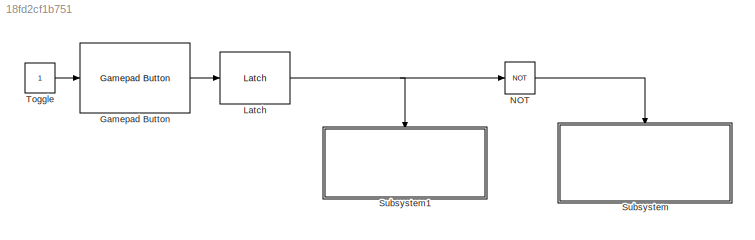
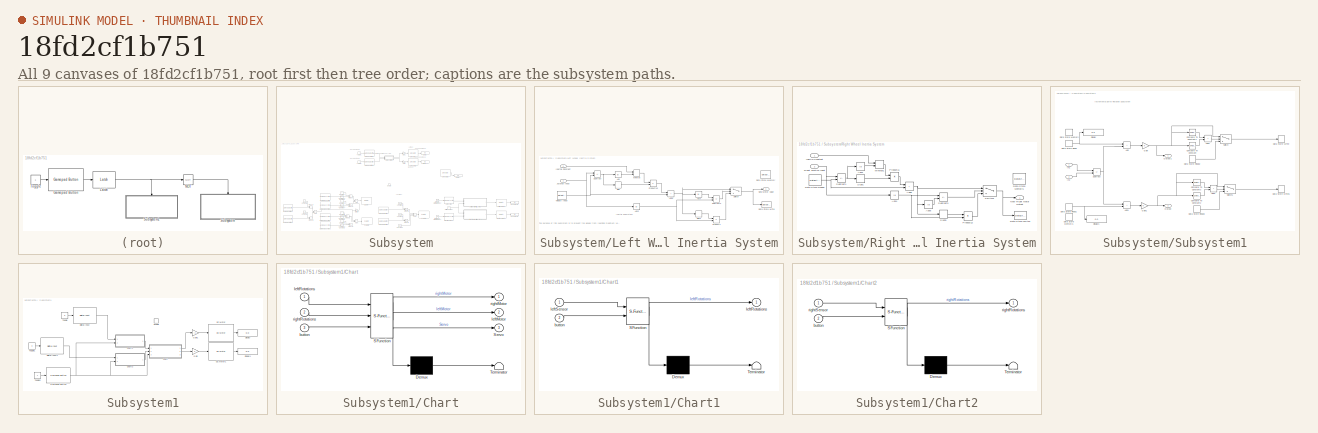
[diagram: thumbnail index - all 9 canvases of the model, root first then tree order]
MODEL slx_18fd2cf1b751
KIND model
CONFIG AbsTol = auto
CONFIG EnableMultiTasking = off
CONFIG FixedStep = auto
CONFIG MaxStep = auto
CONFIG MinStep = auto
CONFIG RelTol = 1e-3
CONFIG SampleTimeConstraint = Unconstrained
CONFIG SolverName = VariableStepAuto
CONFIG StartTime = 0.0
CONFIG StopTime = 10.0
BLOCK [Reference] Gamepad Button  REF=vexarmcortexlib/Gamepad/Gamepad Button
  Ports = [1, 1]
  SourceBlock = vexarmcortexlib/Gamepad/Gamepad Button
  SourceProductBaseCode = EC_VEX_MICRO
  SourceType = Gamepad Button
BLOCK [Reference] Latch  REF=vexcommonlib/Latch
  Ports = [1, 1]
  SourceBlock = vexcommonlib/Latch
  SourceProductBaseCode = EC_VEX_MICRO,VEXV5
  SourceType = Latch
BLOCK [Logic] NOT
  AllPortsSameDT = off
  IconShape = distinctive
  Operator = NOT
  OutDataTypeStr = boolean
  Ports = [1, 1]
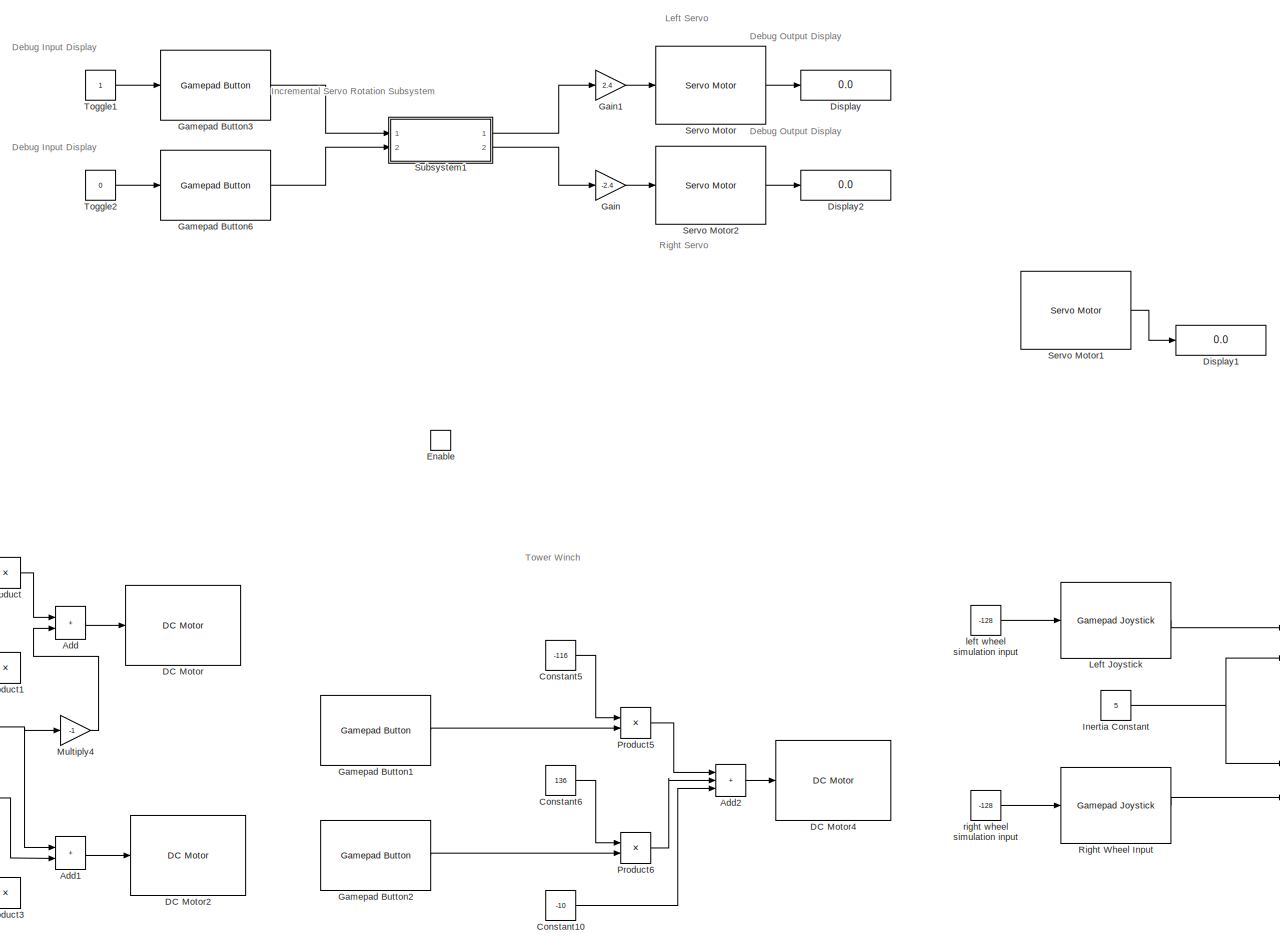
[diagram: Subsystem - part 1/3, center side, full height]
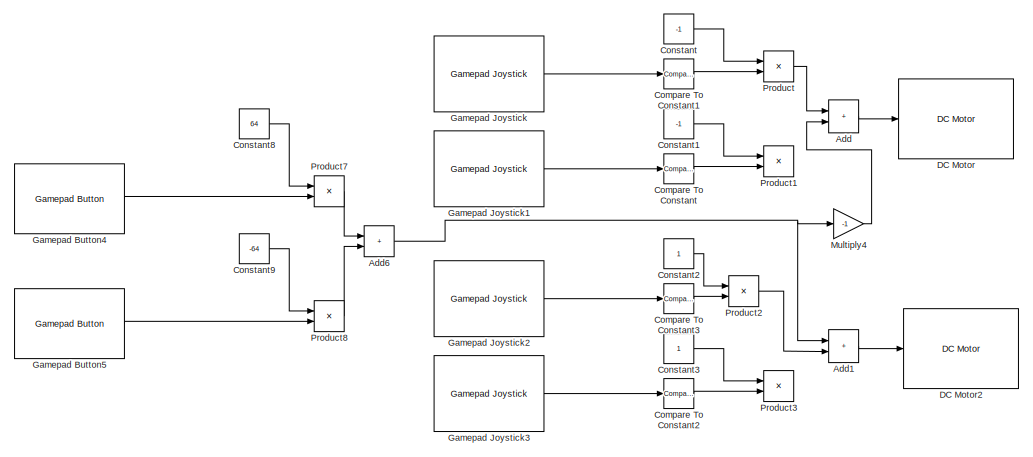
[diagram: Subsystem - part 2/3, bottom left region]
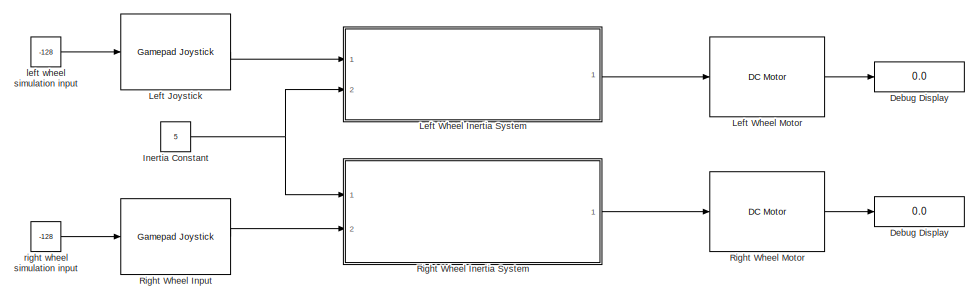
[diagram: Subsystem - part 3/3, bottom right region]
BLOCK [SubSystem] Subsystem
  Ports = [0, 0, 1]
  RequestExecContextInheritance = off
BLOCK [Display] Subsystem/ Debug Display
  Commented = on
  Decimation = 1
  Ports = [1]
BLOCK [Sum] Subsystem/Add
  IconShape = rectangular
  Ports = [2, 1]
BLOCK [Sum] Subsystem/Add1
  IconShape = rectangular
  Ports = [2, 1]
BLOCK [Sum] Subsystem/Add2
  IconShape = rectangular
  Inputs = +++
  Ports = [3, 1]
BLOCK [Sum] Subsystem/Add6
  IconShape = rectangular
  Ports = [2, 1]
BLOCK [Reference] Subsystem/Compare To Constant  REF=simulink/Logic and Bit
Operations/Compare
To Constant
  Commented = on
  Ports = [1, 1]
  SourceBlock = simulink/Logic and Bit\nOperations/Compare\nTo Constant
  SourceProductBaseCode = SL
  SourceType = Compare To Constant
BLOCK [Reference] Subsystem/Compare To Constant1  REF=simulink/Logic and Bit
Operations/Compare
To Constant
  Commented = through
  Ports = [1, 1]
  SourceBlock = simulink/Logic and Bit\nOperations/Compare\nTo Constant
  SourceProductBaseCode = SL
  SourceType = Compare To Constant
BLOCK [Reference] Subsystem/Compare To Constant2  REF=simulink/Logic and Bit
Operations/Compare
To Constant
  Commented = on
  Ports = [1, 1]
  SourceBlock = simulink/Logic and Bit\nOperations/Compare\nTo Constant
  SourceProductBaseCode = SL
  SourceType = Compare To Constant
BLOCK [Reference] Subsystem/Compare To Constant3  REF=simulink/Logic and Bit
Operations/Compare
To Constant
  Commented = through
  Ports = [1, 1]
  SourceBlock = simulink/Logic and Bit\nOperations/Compare\nTo Constant
  SourceProductBaseCode = SL
  SourceType = Compare To Constant
BLOCK [Constant] Subsystem/Constant
  Value = -1
BLOCK [Constant] Subsystem/Constant1
  Commented = on
  Value = -1
BLOCK [Constant] Subsystem/Constant10
  Value = -10
BLOCK [Constant] Subsystem/Constant2
BLOCK [Constant] Subsystem/Constant3
  Commented = on
BLOCK [Constant] Subsystem/Constant5
  Value = -116
BLOCK [Constant] Subsystem/Constant6
  Value = 136
BLOCK [Constant] Subsystem/Constant8
  Value = 64
BLOCK [Constant] Subsystem/Constant9
  Value = -64
BLOCK [Reference] Subsystem/DC Motor  REF=vexarmcortexlib/Actuators/DC Motor
  Ports = [1]
  SourceBlock = vexarmcortexlib/Actuators/DC Motor
  SourceProductBaseCode = EC_VEX_MICRO
  SourceType = DC Motor
BLOCK [Reference] Subsystem/DC Motor2  REF=vexarmcortexlib/Actuators/DC Motor
  Ports = [1]
  SourceBlock = vexarmcortexlib/Actuators/DC Motor
  SourceProductBaseCode = EC_VEX_MICRO
  SourceType = DC Motor
BLOCK [Reference] Subsystem/DC Motor4  REF=vexarmcortexlib/Actuators/DC Motor
  Ports = [1]
  SourceBlock = vexarmcortexlib/Actuators/DC Motor
  SourceProductBaseCode = EC_VEX_MICRO
  SourceType = DC Motor
BLOCK [Display] Subsystem/Debug Display
  Commented = on
  Decimation = 1
  Ports = [1]
BLOCK [Display] Subsystem/Display
  Decimation = 1
  Ports = [1]
BLOCK [Display] Subsystem/Display1
  Commented = on
  Decimation = 1
  Ports = [1]
BLOCK [Display] Subsystem/Display2
  Decimation = 1
  Ports = [1]
BLOCK [EnablePort] Subsystem/Enable
  Ports = []
BLOCK [Gain] Subsystem/Gain
  Gain = -2.4
BLOCK [Gain] Subsystem/Gain1
  Gain = 2.4
BLOCK [Reference] Subsystem/Gamepad Button1  REF=vexarmcortexlib/Gamepad/Gamepad Button
  Ports = [0, 1]
  SourceBlock = vexarmcortexlib/Gamepad/Gamepad Button
  SourceProductBaseCode = EC_VEX_MICRO
  SourceType = Gamepad Button
BLOCK [Reference] Subsystem/Gamepad Button2  REF=vexarmcortexlib/Gamepad/Gamepad Button
  Ports = [0, 1]
  SourceBlock = vexarmcortexlib/Gamepad/Gamepad Button
  SourceProductBaseCode = EC_VEX_MICRO
  SourceType = Gamepad Button
BLOCK [Reference] Subsystem/Gamepad Button3  REF=vexarmcortexlib/Gamepad/Gamepad Button
  Ports = [1, 1]
  SourceBlock = vexarmcortexlib/Gamepad/Gamepad Button
  SourceProductBaseCode = EC_VEX_MICRO
  SourceType = Gamepad Button
BLOCK [Reference] Subsystem/Gamepad Button4  REF=vexarmcortexlib/Gamepad/Gamepad Button
  Ports = [0, 1]
  SourceBlock = vexarmcortexlib/Gamepad/Gamepad Button
  SourceProductBaseCode = EC_VEX_MICRO
  SourceType = Gamepad Button
BLOCK [Reference] Subsystem/Gamepad Button5  REF=vexarmcortexlib/Gamepad/Gamepad Button
  Ports = [0, 1]
  SourceBlock = vexarmcortexlib/Gamepad/Gamepad Button
  SourceProductBaseCode = EC_VEX_MICRO
  SourceType = Gamepad Button
BLOCK [Reference] Subsystem/Gamepad Button6  REF=vexarmcortexlib/Gamepad/Gamepad Button
  Ports = [1, 1]
  SourceBlock = vexarmcortexlib/Gamepad/Gamepad Button
  SourceProductBaseCode = EC_VEX_MICRO
  SourceType = Gamepad Button
BLOCK [Reference] Subsystem/Gamepad Joystick  REF=vexarmcortexlib/Gamepad/Gamepad Joystick
  Ports = [0, 1]
  SourceBlock = vexarmcortexlib/Gamepad/Gamepad Joystick
  SourceProductBaseCode = EC_VEX_MICRO
  SourceType = Gamepad Joystick
BLOCK [Reference] Subsystem/Gamepad Joystick1  REF=vexarmcortexlib/Gamepad/Gamepad Joystick
  Commented = on
  Ports = [0, 1]
  SourceBlock = vexarmcortexlib/Gamepad/Gamepad Joystick
  SourceProductBaseCode = EC_VEX_MICRO
  SourceType = Gamepad Joystick
BLOCK [Reference] Subsystem/Gamepad Joystick2  REF=vexarmcortexlib/Gamepad/Gamepad Joystick
  Ports = [0, 1]
  SourceBlock = vexarmcortexlib/Gamepad/Gamepad Joystick
  SourceProductBaseCode = EC_VEX_MICRO
  SourceType = Gamepad Joystick
BLOCK [Reference] Subsystem/Gamepad Joystick3  REF=vexarmcortexlib/Gamepad/Gamepad Joystick
  Commented = on
  Ports = [0, 1]
  SourceBlock = vexarmcortexlib/Gamepad/Gamepad Joystick
  SourceProductBaseCode = EC_VEX_MICRO
  SourceType = Gamepad Joystick
BLOCK [Constant] Subsystem/Inertia Constant
  Commented = on
  Value = 5
BLOCK [Reference] Subsystem/Left Joystick  REF=vexarmcortexlib/Gamepad/Gamepad Joystick
  Commented = on
  Ports = [1, 1]
  SourceBlock = vexarmcortexlib/Gamepad/Gamepad Joystick
  SourceProductBaseCode = EC_VEX_MICRO
  SourceType = Gamepad Joystick
BLOCK [SubSystem] Subsystem/Left Wheel Inertia System
  Commented = on
  Ports = [2, 1]
  RequestExecContextInheritance = off
BLOCK [Abs] Subsystem/Left Wheel Inertia System/Abs
  SaturateOnIntegerOverflow = off
BLOCK [Abs] Subsystem/Left Wheel Inertia System/Abs2
  SaturateOnIntegerOverflow = off
BLOCK [Abs] Subsystem/Left Wheel Inertia System/Abs3
  SaturateOnIntegerOverflow = off
BLOCK [Sum] Subsystem/Left Wheel Inertia System/Add5
  IconShape = rectangular
  Ports = [2, 1]
BLOCK [DataStoreMemory] Subsystem/Left Wheel Inertia System/Data Store Memory
  DataStoreName = velocity1
  ReadBeforeWriteMsg = warning
  ShowAdditionalParam = off
  WriteAfterReadMsg = warning
  WriteAfterWriteMsg = warning
BLOCK [DataStoreWrite] Subsystem/Left Wheel Inertia System/Data Store Write
  DataStoreName = velocity1
  IndexOptions = Index vector (dialog)
  Indices = 1
  OutputSizes = 1
  Ports = [1]
  SampleTime = 0.02
BLOCK [Inport] Subsystem/Left Wheel Inertia System/Inertia Constant
  Port = 2
BLOCK [Inport] Subsystem/Left Wheel Inertia System/Joystick Input
BLOCK [MinMax] Subsystem/Left Wheel Inertia System/MinMax
  Inputs = 2
  Ports = [2, 1]
BLOCK [Outport] Subsystem/Left Wheel Inertia System/New Motor Value
BLOCK [Product] Subsystem/Left Wheel Inertia System/Product1
  Ports = [2, 1]
  RndMeth = Zero
BLOCK [Product] Subsystem/Left Wheel Inertia System/Product10
  Ports = [2, 1]
  RndMeth = Zero
BLOCK [Signum] Subsystem/Left Wheel Inertia System/Sign
BLOCK [Signum] Subsystem/Left Wheel Inertia System/Sign2
BLOCK [Sum] Subsystem/Left Wheel Inertia System/Subtract
  IconShape = rectangular
  Inputs = +-
  Ports = [2, 1]
BLOCK [Sum] Subsystem/Left Wheel Inertia System/Subtract2
  IconShape = rectangular
  Inputs = -+
  Ports = [2, 1]
BLOCK [Switch] Subsystem/Left Wheel Inertia System/Switch
  Criteria = u2 > Threshold
  InputSameDT = off
  SaturateOnIntegerOverflow = off
BLOCK [DataStoreRead] Subsystem/Left Wheel Inertia System/Velocity Input
  DataStoreName = velocity1
  IndexOptions = Index vector (dialog)
  Indices = 1
  OutputSizes = 1
  Ports = [0, 1]
  SampleTime = 0.02
BLOCK [Reference] Subsystem/Left Wheel Motor  REF=vexarmcortexlib/Actuators/DC Motor
  Commented = on
  Ports = [1, 1]
  SourceBlock = vexarmcortexlib/Actuators/DC Motor
  SourceProductBaseCode = EC_VEX_MICRO
  SourceType = DC Motor
BLOCK [Gain] Subsystem/Multiply4
  Gain = -1
BLOCK [Product] Subsystem/Product
  NameLocation = right
  Ports = [2, 1]
BLOCK [Product] Subsystem/Product1
  Commented = on
  NameLocation = right
  Ports = [2, 1]
BLOCK [Product] Subsystem/Product2
  NameLocation = right
  Ports = [2, 1]
BLOCK [Product] Subsystem/Product3
  Commented = on
  NameLocation = right
  Ports = [2, 1]
BLOCK [Product] Subsystem/Product5
  Ports = [2, 1]
BLOCK [Product] Subsystem/Product6
  Ports = [2, 1]
BLOCK [Product] Subsystem/Product7
  Ports = [2, 1]
BLOCK [Product] Subsystem/Product8
  Ports = [2, 1]
BLOCK [SubSystem] Subsystem/Right Wheel Inertia System
  Commented = on
  Ports = [2, 1]
  RequestExecContextInheritance = off
BLOCK [Abs] Subsystem/Right Wheel Inertia System/Abs1
  SaturateOnIntegerOverflow = off
BLOCK [Abs] Subsystem/Right Wheel Inertia System/Abs4
  SaturateOnIntegerOverflow = off
BLOCK [Abs] Subsystem/Right Wheel Inertia System/Abs5
  SaturateOnIntegerOverflow = off
BLOCK [Sum] Subsystem/Right Wheel Inertia System/Add6
  IconShape = rectangular
  Ports = [2, 1]
BLOCK [DataStoreMemory] Subsystem/Right Wheel Inertia System/Data Store Memory1
  DataStoreName = velocity2
  ReadBeforeWriteMsg = warning
  ShowAdditionalParam = off
  WriteAfterReadMsg = warning
  WriteAfterWriteMsg = warning
BLOCK [DataStoreRead] Subsystem/Right Wheel Inertia System/Data Store Read3
  DataStoreName = velocity2
  IndexOptions = Index vector (dialog)
  Indices = 1
  OutputSizes = 1
  Ports = [0, 1]
  SampleTime = 0.02
BLOCK [DataStoreWrite] Subsystem/Right Wheel Inertia System/Data Store Write1
  DataStoreName = velocity2
  IndexOptions = Index vector (dialog)
  Indices = 1
  OutputSizes = 1
  Ports = [1]
  SampleTime = 0.02
BLOCK [Inport] Subsystem/Right Wheel Inertia System/Inertia Constant
BLOCK [MinMax] Subsystem/Right Wheel Inertia System/MinMax1
  Inputs = 2
  Ports = [2, 1]
BLOCK [Outport] Subsystem/Right Wheel Inertia System/New Right Motor Output
BLOCK [Product] Subsystem/Right Wheel Inertia System/Product11
  Ports = [2, 1]
  RndMeth = Zero
BLOCK [Product] Subsystem/Right Wheel Inertia System/Product12
  Ports = [2, 1]
  RndMeth = Zero
BLOCK [Inport] Subsystem/Right Wheel Inertia System/Right Joystick Input
  Port = 2
BLOCK [Signum] Subsystem/Right Wheel Inertia System/Sign1
BLOCK [Signum] Subsystem/Right Wheel Inertia System/Sign3
BLOCK [Sum] Subsystem/Right Wheel Inertia System/Subtract1
  IconShape = rectangular
  Inputs = +-
  Ports = [2, 1]
BLOCK [Sum] Subsystem/Right Wheel Inertia System/Subtract3
  IconShape = rectangular
  Inputs = +-
  Ports = [2, 1]
BLOCK [Switch] Subsystem/Right Wheel Inertia System/Switch1
  Criteria = u2 > Threshold
  InputSameDT = off
  SaturateOnIntegerOverflow = off
BLOCK [Reference] Subsystem/Right Wheel Input  REF=vexarmcortexlib/Gamepad/Gamepad Joystick
  Commented = on
  Ports = [1, 1]
  SourceBlock = vexarmcortexlib/Gamepad/Gamepad Joystick
  SourceProductBaseCode = EC_VEX_MICRO
  SourceType = Gamepad Joystick
BLOCK [Reference] Subsystem/Right Wheel Motor  REF=vexarmcortexlib/Actuators/DC Motor
  Commented = on
  Ports = [1, 1]
  SourceBlock = vexarmcortexlib/Actuators/DC Motor
  SourceProductBaseCode = EC_VEX_MICRO
  SourceType = DC Motor
BLOCK [Reference] Subsystem/Servo Motor  REF=vexarmcortexlib/Actuators/Servo Motor
  Ports = [1, 1]
  SourceBlock = vexarmcortexlib/Actuators/Servo Motor
  SourceProductBaseCode = EC_VEX_MICRO
  SourceType = Servo Motor
BLOCK [Reference] Subsystem/Servo Motor1  REF=vexarmcortexlib/Actuators/Servo Motor
  Commented = on
  Ports = [1, 1]
  SourceBlock = vexarmcortexlib/Actuators/Servo Motor
  SourceProductBaseCode = EC_VEX_MICRO
  SourceType = Servo Motor
BLOCK [Reference] Subsystem/Servo Motor2  REF=vexarmcortexlib/Actuators/Servo Motor
  Ports = [1, 1]
  SourceBlock = vexarmcortexlib/Actuators/Servo Motor
  SourceProductBaseCode = EC_VEX_MICRO
  SourceType = Servo Motor
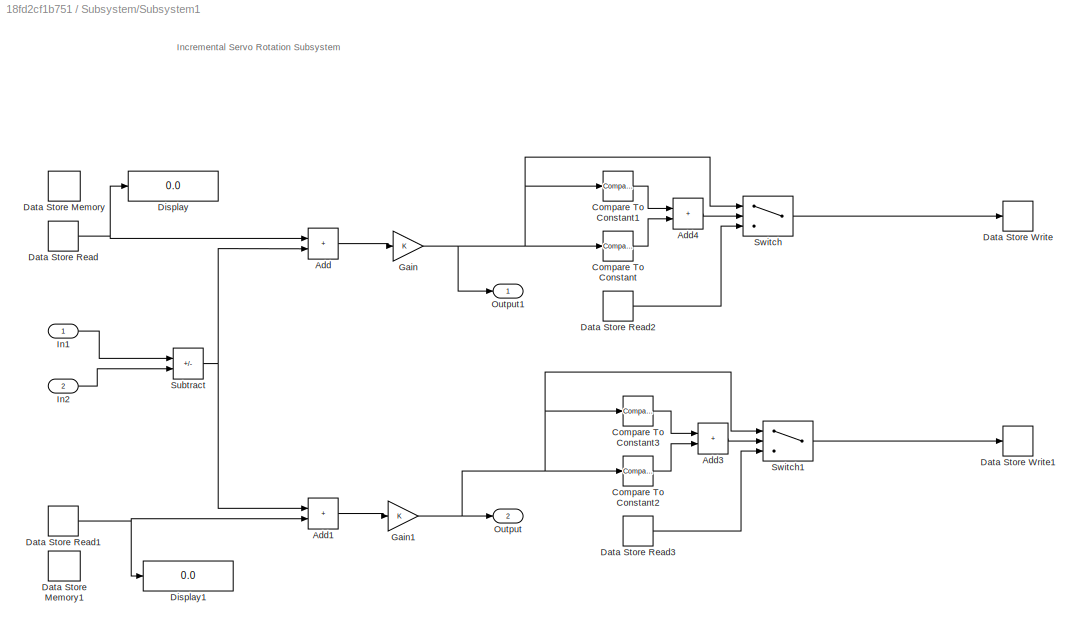
BLOCK [SubSystem] Subsystem/Subsystem1
  Ports = [2, 2]
  RequestExecContextInheritance = off
BLOCK [Sum] Subsystem/Subsystem1/Add
  IconShape = rectangular
  Ports = [2, 1]
BLOCK [Sum] Subsystem/Subsystem1/Add1
  IconShape = rectangular
  Ports = [2, 1]
BLOCK [Sum] Subsystem/Subsystem1/Add3
  IconShape = rectangular
  Ports = [2, 1]
BLOCK [Sum] Subsystem/Subsystem1/Add4
  IconShape = rectangular
  Ports = [2, 1]
BLOCK [Reference] Subsystem/Subsystem1/Compare To Constant  REF=simulink/Logic and Bit
Operations/Compare
To Constant
  Ports = [1, 1]
  SourceBlock = simulink/Logic and Bit\nOperations/Compare\nTo Constant
  SourceProductBaseCode = SL
  SourceType = Compare To Constant
BLOCK [Reference] Subsystem/Subsystem1/Compare To Constant1  REF=simulink/Logic and Bit
Operations/Compare
To Constant
  Ports = [1, 1]
  SourceBlock = simulink/Logic and Bit\nOperations/Compare\nTo Constant
  SourceProductBaseCode = SL
  SourceType = Compare To Constant
BLOCK [Reference] Subsystem/Subsystem1/Compare To Constant2  REF=simulink/Logic and Bit
Operations/Compare
To Constant
  Ports = [1, 1]
  SourceBlock = simulink/Logic and Bit\nOperations/Compare\nTo Constant
  SourceProductBaseCode = SL
  SourceType = Compare To Constant
BLOCK [Reference] Subsystem/Subsystem1/Compare To Constant3  REF=simulink/Logic and Bit
Operations/Compare
To Constant
  Ports = [1, 1]
  SourceBlock = simulink/Logic and Bit\nOperations/Compare\nTo Constant
  SourceProductBaseCode = SL
  SourceType = Compare To Constant
BLOCK [DataStoreMemory] Subsystem/Subsystem1/Data Store Memory
  ReadBeforeWriteMsg = warning
  ShowAdditionalParam = off
  WriteAfterReadMsg = warning
  WriteAfterWriteMsg = warning
BLOCK [DataStoreMemory] Subsystem/Subsystem1/Data Store Memory1
  DataStoreName = B
  ReadBeforeWriteMsg = warning
  ShowAdditionalParam = off
  WriteAfterReadMsg = warning
  WriteAfterWriteMsg = warning
BLOCK [DataStoreRead] Subsystem/Subsystem1/Data Store Read
  IndexOptions = Index vector (dialog)
  Indices = 1
  OutputSizes = 1
  Ports = [0, 1]
BLOCK [DataStoreRead] Subsystem/Subsystem1/Data Store Read1
  DataStoreName = B
  IndexOptions = Index vector (dialog)
  Indices = 1
  OutputSizes = 1
  Ports = [0, 1]
BLOCK [DataStoreRead] Subsystem/Subsystem1/Data Store Read2
  IndexOptions = Index vector (dialog)
  Indices = 1
  OutputSizes = 1
  Ports = [0, 1]
BLOCK [DataStoreRead] Subsystem/Subsystem1/Data Store Read3
  DataStoreName = B
  IndexOptions = Index vector (dialog)
  Indices = 1
  OutputSizes = 1
  Ports = [0, 1]
BLOCK [DataStoreWrite] Subsystem/Subsystem1/Data Store Write
  IndexOptions = Index vector (dialog)
  Indices = 1
  OutputSizes = 1
  Ports = [1]
BLOCK [DataStoreWrite] Subsystem/Subsystem1/Data Store Write1
  DataStoreName = B
  IndexOptions = Index vector (dialog)
  Indices = 1
  OutputSizes = 1
  Ports = [1]
BLOCK [Display] Subsystem/Subsystem1/Display
  Decimation = 1
  Ports = [1]
BLOCK [Display] Subsystem/Subsystem1/Display1
  Decimation = 1
  Ports = [1]
BLOCK [Gain] Subsystem/Subsystem1/Gain
BLOCK [Gain] Subsystem/Subsystem1/Gain1
BLOCK [Inport] Subsystem/Subsystem1/In1
BLOCK [Inport] Subsystem/Subsystem1/In2
  Port = 2
BLOCK [Outport] Subsystem/Subsystem1/Output
  Port = 2
BLOCK [Outport] Subsystem/Subsystem1/Output1
BLOCK [Sum] Subsystem/Subsystem1/Subtract
  IconShape = rectangular
  Inputs = +-
  Ports = [2, 1]
BLOCK [Switch] Subsystem/Subsystem1/Switch
  Criteria = u2 > Threshold
  InputSameDT = off
  SaturateOnIntegerOverflow = off
  Threshold = 1
BLOCK [Switch] Subsystem/Subsystem1/Switch1
  Criteria = u2 > Threshold
  InputSameDT = off
  SaturateOnIntegerOverflow = off
  Threshold = 1
BLOCK [Constant] Subsystem/Toggle1
  OpenFcn = if strcmp('0',get_param(gcb, 'Value'))                        set_param(gcb, 'Value', '1');\nelse                                                                                       \n            set_param(gcb, 'Value', '0');                                                  \nend  <repeated x6 — deduplicated; at blocks: Toggle1, Toggle2, Toggle>
BLOCK [Constant] Subsystem/Toggle2
  Value = 0
BLOCK [Constant] Subsystem/left wheel simulation input
  Commented = on
  SampleTime = 0.02
  Value = -128
BLOCK [Constant] Subsystem/right wheel simulation input
  Commented = on
  SampleTime = 0.02
  Value = -128
BLOCK [SubSystem] Subsystem1
  Ports = [0, 0, 1]
  RequestExecContextInheritance = off
BLOCK [SubSystem] Subsystem1/Chart
  ErrorFcn = Stateflow.Translate.translate
  PermitHierarchicalResolution = ExplicitOnly
  Ports = [3, 3]
  RequestExecContextInheritance = off
  SFBlockType = Chart
  TreatAsAtomicUnit = on
BLOCK [Demux] Subsystem1/Chart/ Demux 
  Outputs = 1
  Ports = [1, 1]
BLOCK [S-Function] Subsystem1/Chart/ SFunction 
  EnableBusSupport = on
  FunctionName = sf_sfun
  PortCounts = [3 4]
  Ports = [3, 4]
  SFcnIsStateOwnerBlock = off
  SFunctionDeploymentMode = off
  Tag = Stateflow S-Function 4
BLOCK [Terminator] Subsystem1/Chart/ Terminator 
BLOCK [Outport] Subsystem1/Chart/Servo
  Port = 3
BLOCK [Inport] Subsystem1/Chart/button
  Port = 3
BLOCK [Outport] Subsystem1/Chart/leftMotor
  Port = 2
BLOCK [Inport] Subsystem1/Chart/leftRotations
BLOCK [Outport] Subsystem1/Chart/rightMotor
BLOCK [Inport] Subsystem1/Chart/rightRotations
  Port = 2
BLOCK [SubSystem] Subsystem1/Chart1
  ErrorFcn = Stateflow.Translate.translate
  PermitHierarchicalResolution = ExplicitOnly
  Ports = [2, 1]
  RequestExecContextInheritance = off
  SFBlockType = Chart
  TreatAsAtomicUnit = on
BLOCK [Demux] Subsystem1/Chart1/ Demux 
  Outputs = 1
  Ports = [1, 1]
BLOCK [S-Function] Subsystem1/Chart1/ SFunction 
  EnableBusSupport = on
  FunctionName = sf_sfun
  PortCounts = [2 2]
  Ports = [2, 2]
  SFcnIsStateOwnerBlock = off
  SFunctionDeploymentMode = off
  Tag = Stateflow S-Function 5
BLOCK [Terminator] Subsystem1/Chart1/ Terminator 
BLOCK [Inport] Subsystem1/Chart1/button
  Port = 2
BLOCK [Outport] Subsystem1/Chart1/leftRotations
BLOCK [Inport] Subsystem1/Chart1/leftSensor
BLOCK [SubSystem] Subsystem1/Chart2
  ErrorFcn = Stateflow.Translate.translate
  PermitHierarchicalResolution = ExplicitOnly
  Ports = [2, 1]
  RequestExecContextInheritance = off
  SFBlockType = Chart
  TreatAsAtomicUnit = on
BLOCK [Demux] Subsystem1/Chart2/ Demux 
  Outputs = 1
  Ports = [1, 1]
BLOCK [S-Function] Subsystem1/Chart2/ SFunction 
  EnableBusSupport = on
  FunctionName = sf_sfun
  PortCounts = [2 2]
  Ports = [2, 2]
  SFcnIsStateOwnerBlock = off
  SFunctionDeploymentMode = off
  Tag = Stateflow S-Function 6
BLOCK [Terminator] Subsystem1/Chart2/ Terminator 
BLOCK [Inport] Subsystem1/Chart2/button
  Port = 2
BLOCK [Outport] Subsystem1/Chart2/rightRotations
BLOCK [Inport] Subsystem1/Chart2/rightSensor
BLOCK [Reference] Subsystem1/DC Motor  REF=vexarmcortexlib/Actuators/DC Motor
  Ports = [1, 1]
  SourceBlock = vexarmcortexlib/Actuators/DC Motor
  SourceProductBaseCode = EC_VEX_MICRO
  SourceType = DC Motor
BLOCK [Reference] Subsystem1/DC Motor1  REF=vexarmcortexlib/Actuators/DC Motor
  Ports = [1, 1]
  SourceBlock = vexarmcortexlib/Actuators/DC Motor
  SourceProductBaseCode = EC_VEX_MICRO
  SourceType = DC Motor
BLOCK [Reference] Subsystem1/Digital Input  REF=vexarmcortexlib/Sensors/Digital Input
  Ports = [1, 1]
  SourceBlock = vexarmcortexlib/Sensors/Digital Input
  SourceProductBaseCode = EC_VEX_MICRO
  SourceType = Digital Input
BLOCK [Reference] Subsystem1/Digital Input1  REF=vexarmcortexlib/Sensors/Digital Input
  Ports = [1, 1]
  SourceBlock = vexarmcortexlib/Sensors/Digital Input
  SourceProductBaseCode = EC_VEX_MICRO
  SourceType = Digital Input
BLOCK [Display] Subsystem1/Display
  Decimation = 1
  Ports = [1]
BLOCK [Display] Subsystem1/Display1
  Decimation = 1
  Ports = [1]
BLOCK [EnablePort] Subsystem1/Enable
  Ports = []
BLOCK [Gain] Subsystem1/Gain
BLOCK [Gain] Subsystem1/Gain1
  Gain = -1
BLOCK [Reference] Subsystem1/Gamepad Button  REF=vexarmcortexlib/Gamepad/Gamepad Button
  Ports = [1, 1]
  SourceBlock = vexarmcortexlib/Gamepad/Gamepad Button
  SourceProductBaseCode = EC_VEX_MICRO
  SourceType = Gamepad Button
BLOCK [Constant] Subsystem1/Toggle
  Value = 0
BLOCK [Constant] Subsystem1/Toggle1
  Value = 0
BLOCK [Constant] Subsystem1/Toggle2
BLOCK [Constant] Toggle
ANNOTATION Subsystem: Tower Winch
ANNOTATION Subsystem: Debug Input Display
ANNOTATION Subsystem: Debug Output Display
ANNOTATION Subsystem: Incremental Servo Rotation Subsystem
ANNOTATION Subsystem: Left Servo
ANNOTATION Subsystem: Right Servo
ANNOTATION Subsystem/Left Wheel Inertia System: The purpose of this subsystem is to prevent the wheels from reaching maximum velocity too quickly, instead forcing them to gradually reach maximum velocity. The subsystem is also designed to allow velocity to immediately drop for the robot to stop quickly
ANNOTATION Subsystem/Left Wheel Inertia System: Inertia Subsystem
ANNOTATION Subsystem/Subsystem1: Incremental Servo Rotation Subsystem
LINE Gamepad Button:1 -> Latch:1
NET Latch:1 -> NOT:1, Subsystem1:enable
LINE NOT:1 -> Subsystem:enable
LINE Subsystem/Add1:1 -> Subsystem/DC Motor2:1
LINE Subsystem/Add2:1 -> Subsystem/DC Motor4:1
NET Subsystem/Add6:1 -> Subsystem/Add1:1, Subsystem/Multiply4:1
LINE Subsystem/Add:1 -> Subsystem/DC Motor:1
LINE Subsystem/Compare To Constant1:1 -> Subsystem/Product:2
LINE Subsystem/Compare To Constant2:1 -> Subsystem/Product3:2
LINE Subsystem/Compare To Constant3:1 -> Subsystem/Product2:2
LINE Subsystem/Compare To Constant:1 -> Subsystem/Product1:2
LINE Subsystem/Constant10:1 -> Subsystem/Add2:3
LINE Subsystem/Constant1:1 -> Subsystem/Product1:1
LINE Subsystem/Constant2:1 -> Subsystem/Product2:1
LINE Subsystem/Constant3:1 -> Subsystem/Product3:1
LINE Subsystem/Constant5:1 -> Subsystem/Product5:1
LINE Subsystem/Constant6:1 -> Subsystem/Product6:1
LINE Subsystem/Constant8:1 -> Subsystem/Product7:1
LINE Subsystem/Constant9:1 -> Subsystem/Product8:1
LINE Subsystem/Constant:1 -> Subsystem/Product:1
LINE Subsystem/Gain1:1 -> Subsystem/Servo Motor:1
LINE Subsystem/Gain:1 -> Subsystem/Servo Motor2:1
LINE Subsystem/Gamepad Button1:1 -> Subsystem/Product5:2
LINE Subsystem/Gamepad Button2:1 -> Subsystem/Product6:2
LINE Subsystem/Gamepad Button3:1 -> Subsystem/Subsystem1:1
LINE Subsystem/Gamepad Button4:1 -> Subsystem/Product7:2
LINE Subsystem/Gamepad Button5:1 -> Subsystem/Product8:2
LINE Subsystem/Gamepad Button6:1 -> Subsystem/Subsystem1:2
LINE Subsystem/Gamepad Joystick1:1 -> Subsystem/Compare To Constant:1
LINE Subsystem/Gamepad Joystick2:1 -> Subsystem/Compare To Constant3:1
LINE Subsystem/Gamepad Joystick3:1 -> Subsystem/Compare To Constant2:1
LINE Subsystem/Gamepad Joystick:1 -> Subsystem/Compare To Constant1:1
NET Subsystem/Inertia Constant:1 -> Subsystem/Left Wheel Inertia System:2, Subsystem/Right Wheel Inertia System:1
LINE Subsystem/Left Joystick:1 -> Subsystem/Left Wheel Inertia System:1
NET Subsystem/Left Wheel Inertia System/Abs2:1 -> Subsystem/Left Wheel Inertia System/Product1:2, Subsystem/Left Wheel Inertia System/Subtract2:2
LINE Subsystem/Left Wheel Inertia System/Abs3:1 -> Subsystem/Left Wheel Inertia System/Subtract2:1
LINE Subsystem/Left Wheel Inertia System/Abs:1 -> Subsystem/Left Wheel Inertia System/MinMax:2
NET Subsystem/Left Wheel Inertia System/Add5:1 -> Subsystem/Left Wheel Inertia System/Abs3:1, Subsystem/Left Wheel Inertia System/Sign2:1, Subsystem/Left Wheel Inertia System/Switch:1
LINE Subsystem/Left Wheel Inertia System/Inertia Constant:1 -> Subsystem/Left Wheel Inertia System/MinMax:1
NET Subsystem/Left Wheel Inertia System/Joystick Input:1 -> Subsystem/Left Wheel Inertia System/Abs2:1, Subsystem/Left Wheel Inertia System/Subtract:1
LINE Subsystem/Left Wheel Inertia System/MinMax:1 -> Subsystem/Left Wheel Inertia System/Product10:1
LINE Subsystem/Left Wheel Inertia System/Product10:1 -> Subsystem/Left Wheel Inertia System/Add5:1
LINE Subsystem/Left Wheel Inertia System/Product1:1 -> Subsystem/Left Wheel Inertia System/Switch:3
LINE Subsystem/Left Wheel Inertia System/Sign2:1 -> Subsystem/Left Wheel Inertia System/Product1:1
LINE Subsystem/Left Wheel Inertia System/Sign:1 -> Subsystem/Left Wheel Inertia System/Product10:2
LINE Subsystem/Left Wheel Inertia System/Subtract2:1 -> Subsystem/Left Wheel Inertia System/Switch:2
NET Subsystem/Left Wheel Inertia System/Subtract:1 -> Subsystem/Left Wheel Inertia System/Abs:1, Subsystem/Left Wheel Inertia System/Sign:1
NET Subsystem/Left Wheel Inertia System/Switch:1 -> Subsystem/Left Wheel Inertia System/Data Store Write:1, Subsystem/Left Wheel Inertia System/New Motor Value:1
NET Subsystem/Left Wheel Inertia System/Velocity Input:1 -> Subsystem/Left Wheel Inertia System/Add5:2, Subsystem/Left Wheel Inertia System/Subtract:2
LINE Subsystem/Left Wheel Inertia System:1 -> Subsystem/Left Wheel Motor:1
LINE Subsystem/Left Wheel Motor:1 -> Subsystem/ Debug Display:1
LINE Subsystem/Multiply4:1 -> Subsystem/Add:2
LINE Subsystem/Product2:1 -> Subsystem/Add1:2
LINE Subsystem/Product5:1 -> Subsystem/Add2:1
LINE Subsystem/Product6:1 -> Subsystem/Add2:2
LINE Subsystem/Product7:1 -> Subsystem/Add6:1
LINE Subsystem/Product8:1 -> Subsystem/Add6:2
LINE Subsystem/Product:1 -> Subsystem/Add:1
LINE Subsystem/Right Wheel Inertia System/Abs1:1 -> Subsystem/Right Wheel Inertia System/MinMax1:2
NET Subsystem/Right Wheel Inertia System/Abs4:1 -> Subsystem/Right Wheel Inertia System/Product12:2, Subsystem/Right Wheel Inertia System/Subtract3:1
LINE Subsystem/Right Wheel Inertia System/Abs5:1 -> Subsystem/Right Wheel Inertia System/Subtract3:2
NET Subsystem/Right Wheel Inertia System/Add6:1 -> Subsystem/Right Wheel Inertia System/Abs5:1, Subsystem/Right Wheel Inertia System/Sign3:1, Subsystem/Right Wheel Inertia System/Switch1:1
NET Subsystem/Right Wheel Inertia System/Data Store Read3:1 -> Subsystem/Right Wheel Inertia System/Add6:2, Subsystem/Right Wheel Inertia System/Subtract1:2
LINE Subsystem/Right Wheel Inertia System/Inertia Constant:1 -> Subsystem/Right Wheel Inertia System/MinMax1:1
LINE Subsystem/Right Wheel Inertia System/MinMax1:1 -> Subsystem/Right Wheel Inertia System/Product11:1
LINE Subsystem/Right Wheel Inertia System/Product11:1 -> Subsystem/Right Wheel Inertia System/Add6:1
LINE Subsystem/Right Wheel Inertia System/Product12:1 -> Subsystem/Right Wheel Inertia System/Switch1:3
NET Subsystem/Right Wheel Inertia System/Right Joystick Input:1 -> Subsystem/Right Wheel Inertia System/Abs4:1, Subsystem/Right Wheel Inertia System/Subtract1:1
LINE Subsystem/Right Wheel Inertia System/Sign1:1 -> Subsystem/Right Wheel Inertia System/Product11:2
LINE Subsystem/Right Wheel Inertia System/Sign3:1 -> Subsystem/Right Wheel Inertia System/Product12:1
NET Subsystem/Right Wheel Inertia System/Subtract1:1 -> Subsystem/Right Wheel Inertia System/Abs1:1, Subsystem/Right Wheel Inertia System/Sign1:1
LINE Subsystem/Right Wheel Inertia System/Subtract3:1 -> Subsystem/Right Wheel Inertia System/Switch1:2
NET Subsystem/Right Wheel Inertia System/Switch1:1 -> Subsystem/Right Wheel Inertia System/Data Store Write1:1, Subsystem/Right Wheel Inertia System/New Right Motor Output:1
LINE Subsystem/Right Wheel Inertia System:1 -> Subsystem/Right Wheel Motor:1
LINE Subsystem/Right Wheel Input:1 -> Subsystem/Right Wheel Inertia System:2
LINE Subsystem/Right Wheel Motor:1 -> Subsystem/Debug Display:1
LINE Subsystem/Servo Motor1:1 -> Subsystem/Display1:1
LINE Subsystem/Servo Motor2:1 -> Subsystem/Display2:1
LINE Subsystem/Servo Motor:1 -> Subsystem/Display:1
LINE Subsystem/Subsystem1/Add1:1 -> Subsystem/Subsystem1/Gain1:1
LINE Subsystem/Subsystem1/Add3:1 -> Subsystem/Subsystem1/Switch1:2
LINE Subsystem/Subsystem1/Add4:1 -> Subsystem/Subsystem1/Switch:2
LINE Subsystem/Subsystem1/Add:1 -> Subsystem/Subsystem1/Gain:1
LINE Subsystem/Subsystem1/Compare To Constant1:1 -> Subsystem/Subsystem1/Add4:1
LINE Subsystem/Subsystem1/Compare To Constant2:1 -> Subsystem/Subsystem1/Add3:2
LINE Subsystem/Subsystem1/Compare To Constant3:1 -> Subsystem/Subsystem1/Add3:1
LINE Subsystem/Subsystem1/Compare To Constant:1 -> Subsystem/Subsystem1/Add4:2
NET Subsystem/Subsystem1/Data Store Read1:1 -> Subsystem/Subsystem1/Add1:2, Subsystem/Subsystem1/Display1:1
LINE Subsystem/Subsystem1/Data Store Read2:1 -> Subsystem/Subsystem1/Switch:3
LINE Subsystem/Subsystem1/Data Store Read3:1 -> Subsystem/Subsystem1/Switch1:3
NET Subsystem/Subsystem1/Data Store Read:1 -> Subsystem/Subsystem1/Add:1, Subsystem/Subsystem1/Display:1
NET Subsystem/Subsystem1/Gain1:1 -> Subsystem/Subsystem1/Compare To Constant2:1, Subsystem/Subsystem1/Compare To Constant3:1, Subsystem/Subsystem1/Output:1, Subsystem/Subsystem1/Switch1:1
NET Subsystem/Subsystem1/Gain:1 -> Subsystem/Subsystem1/Compare To Constant1:1, Subsystem/Subsystem1/Compare To Constant:1, Subsystem/Subsystem1/Output1:1, Subsystem/Subsystem1/Switch:1
LINE Subsystem/Subsystem1/In1:1 -> Subsystem/Subsystem1/Subtract:1
LINE Subsystem/Subsystem1/In2:1 -> Subsystem/Subsystem1/Subtract:2
NET Subsystem/Subsystem1/Subtract:1 -> Subsystem/Subsystem1/Add1:1, Subsystem/Subsystem1/Add:2
LINE Subsystem/Subsystem1/Switch1:1 -> Subsystem/Subsystem1/Data Store Write1:1
LINE Subsystem/Subsystem1/Switch:1 -> Subsystem/Subsystem1/Data Store Write:1
LINE Subsystem/Subsystem1:1 -> Subsystem/Gain1:1
LINE Subsystem/Subsystem1:2 -> Subsystem/Gain:1
LINE Subsystem/Toggle1:1 -> Subsystem/Gamepad Button3:1
LINE Subsystem/Toggle2:1 -> Subsystem/Gamepad Button6:1
LINE Subsystem/left wheel simulation input:1 -> Subsystem/Left Joystick:1
LINE Subsystem/right wheel simulation input:1 -> Subsystem/Right Wheel Input:1
LINE Subsystem1/Chart1:1 -> Subsystem1/Chart:1
LINE Subsystem1/Chart2:1 -> Subsystem1/Chart:2
LINE Subsystem1/Chart:1 -> Subsystem1/Gain1:1
LINE Subsystem1/Chart:2 -> Subsystem1/Gain:1
LINE Subsystem1/DC Motor1:1 -> Subsystem1/Display1:1
LINE Subsystem1/DC Motor:1 -> Subsystem1/Display:1
LINE Subsystem1/Digital Input1:1 -> Subsystem1/Chart2:1
LINE Subsystem1/Digital Input:1 -> Subsystem1/Chart1:1
LINE Subsystem1/Gain1:1 -> Subsystem1/DC Motor:1
LINE Subsystem1/Gain:1 -> Subsystem1/DC Motor1:1
NET Subsystem1/Gamepad Button:1 -> Subsystem1/Chart1:2, Subsystem1/Chart2:2, Subsystem1/Chart:3
LINE Subsystem1/Toggle1:1 -> Subsystem1/Digital Input1:1
LINE Subsystem1/Toggle2:1 -> Subsystem1/Gamepad Button:1
LINE Subsystem1/Toggle:1 -> Subsystem1/Digital Input:1
LINE Toggle:1 -> Gamepad Button:1
note: NET lines group one-source signal fan-out (src -> all destinations, sorted); 1:1 wires keep LINE
CHART Subsystem1/Chart states=7 transitions=17
  STATE_LABEL 'CloseClaw\nleftMotor = 0;\nrightMotor= 0;\nServo = 0;'
  STATE_LABEL 'Straight\nleftMotor = 100;\nrightMotor = 100;\n'
  STATE_LABEL 'DriveForward\nleftMotor = 100;\nrightMotor = 100;'
  STATE_LABEL 'Right\nrightMotor = 100;\nleftMotor = 0;'
  STATE_LABEL 'Left\nrightMotor = 0;\nleftMotor = 100;\n'
  STATE_LABEL 'Stop\nleftMotor = 0;\nrightMotor = 0;\n'
  STATE_LABEL 'Turn\nleftMotor = -100;\nrightMotor = 100;\n'
CHART Subsystem1/Chart1 states=4 transitions=8
  STATE_LABEL 'OverBlack\nleftRotations = leftRotations + 1;\nleftFlag = 1;'
  STATE_LABEL 'Start\nleftRotations = 0;\n'
  STATE_LABEL 'Pause\nleftRotations;'
  STATE_LABEL 'OverWhite\nleftRotations = leftRotations + 1;\nleftFlag = 0;'
CHART Subsystem1/Chart2 states=4 transitions=8
  STATE_LABEL 'OverBlack\nrightRotations = rightRotations + 1;\nrightFlag = 1;'
  STATE_LABEL 'Pause\nrightRotations;'
  STATE_LABEL 'Start\nrightRotations = 0;'
  STATE_LABEL 'OverWhite\nrightRotations = rightRotations + 1;\nrightFlag = 0;'
CHART  states=0 transitions=0
CHART  states=0 transitions=0
CHART  states=0 transitions=0
